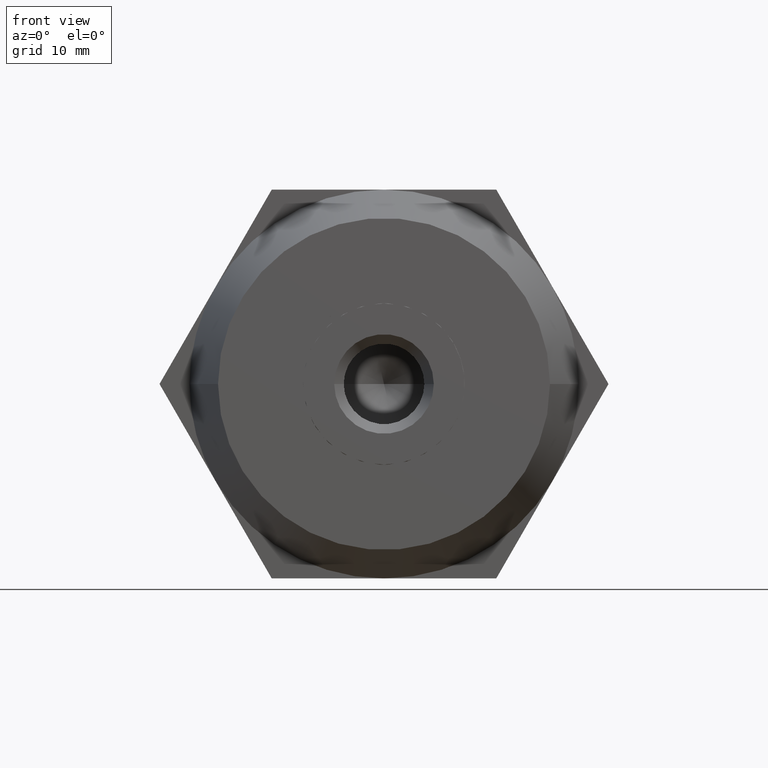
[diagram: clean part render]
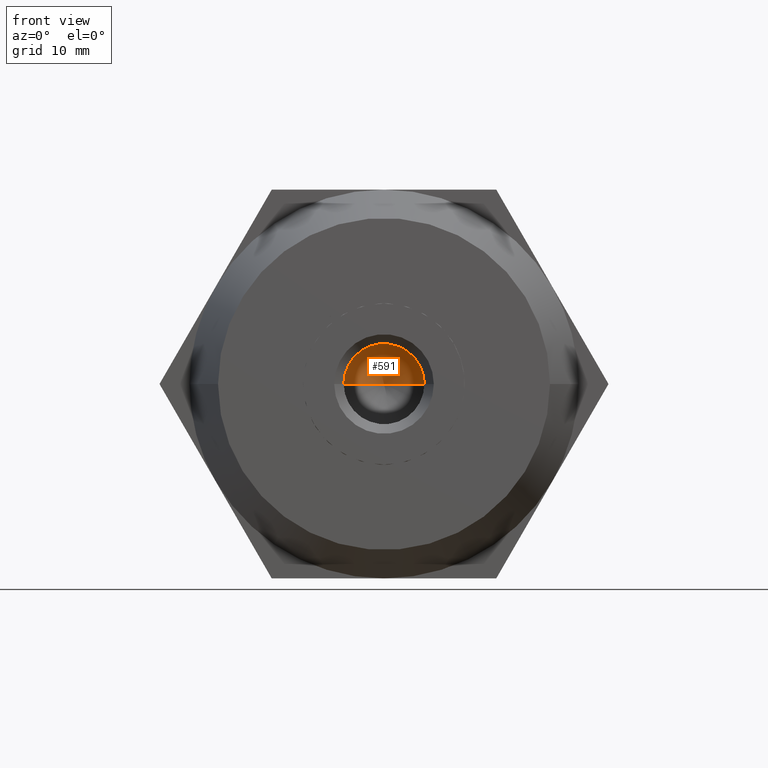
[diagram: same view with one face highlighted and labeled with its STEP entity id]
A machine part, front view. The second image highlights one B-rep face of the part: STEP entity #591.
In plain terms, the highlighted conical surface has half-angle 59 deg.
Its self-contained STEP definition (entity closure, byte-faithful):
#40 = LINE ( 'NONE', #3548, #1391 ) ;
#338 = EDGE_CURVE ( 'NONE', #2349, #668, #2032, .T. ) ;
#354 = CARTESIAN_POINT ( 'NONE',  ( 0.0000000000000000000, 3.050000000000000300, 0.0000000000000000000 ) ) ;
#417 = LINE ( 'NONE', #3434, #2749 ) ;
#591 = ADVANCED_FACE ( 'NONE', ( #3084 ), #3966, .F. ) ;
#668 = VERTEX_POINT ( 'NONE', #804 ) ;
#782 = AXIS2_PLACEMENT_3D ( 'NONE', #354, #1851, #3748 ) ;
#804 = CARTESIAN_POINT ( 'NONE',  ( 5.204748896376250700E-016, 3.050000000000000300, -4.250000000000000000 ) ) ;
#1380 = DIRECTION ( 'NONE',  ( 0.0000000000000000000, 1.000000000000000000, 0.0000000000000000000 ) ) ;
#1391 = VECTOR ( 'NONE', #3862, 999.9999999999998900 ) ;
#1452 = CARTESIAN_POINT ( 'NONE',  ( -4.042230298373044700E-015, 0.4963423691328700000, 0.0000000000000000000 ) ) ;
#1606 = DIRECTION ( 'NONE',  ( 0.0000000000000000000, 0.5150380749100549300, 0.8571673007021118900 ) ) ;
#1678 = DIRECTION ( 'NONE',  ( 0.0000000000000000000, 0.0000000000000000000, 1.000000000000000000 ) ) ;
#1699 = ORIENTED_EDGE ( 'NONE', *, *, #3395, .F. ) ;
#1709 = AXIS2_PLACEMENT_3D ( 'NONE', #2898, #1380, #1678 ) ;
#1851 = DIRECTION ( 'NONE',  ( 0.0000000000000000000, 1.000000000000000000, 0.0000000000000000000 ) ) ;
#2032 = CIRCLE ( 'NONE', #782, 4.250000000000000000 ) ;
#2349 = VERTEX_POINT ( 'NONE', #3545 ) ;
#2544 = ORIENTED_EDGE ( 'NONE', *, *, #3865, .T. ) ;
#2749 = VECTOR ( 'NONE', #1606, 999.9999999999998900 ) ;
#2898 = CARTESIAN_POINT ( 'NONE',  ( 0.0000000000000000000, 3.050000000000000300, 0.0000000000000000000 ) ) ;
#2998 = VERTEX_POINT ( 'NONE', #1452 ) ;
#3084 = FACE_OUTER_BOUND ( 'NONE', #3115, .T. ) ;
#3115 = EDGE_LOOP ( 'NONE', ( #1699, #2544, #3864 ) ) ;
#3395 = EDGE_CURVE ( 'NONE', #2998, #668, #40, .T. ) ;
#3434 = CARTESIAN_POINT ( 'NONE',  ( 0.0000000000000000000, 3.050000000000000300, 4.250000000000000000 ) ) ;
#3545 = CARTESIAN_POINT ( 'NONE',  ( 0.0000000000000000000, 3.050000000000000300, 4.250000000000000000 ) ) ;
#3548 = CARTESIAN_POINT ( 'NONE',  ( 5.204748896376250700E-016, 3.050000000000000300, -4.250000000000000000 ) ) ;
#3748 = DIRECTION ( 'NONE',  ( 0.0000000000000000000, 0.0000000000000000000, 1.000000000000000000 ) ) ;
#3862 = DIRECTION ( 'NONE',  ( 1.049727191138618200E-016, 0.5150380749100549300, -0.8571673007021118900 ) ) ;
#3864 = ORIENTED_EDGE ( 'NONE', *, *, #338, .T. ) ;
#3865 = EDGE_CURVE ( 'NONE', #2998, #2349, #417, .T. ) ;
#3966 = CONICAL_SURFACE ( 'NONE', #1709, 4.250000000000000000, 1.029744258676653600 ) ;